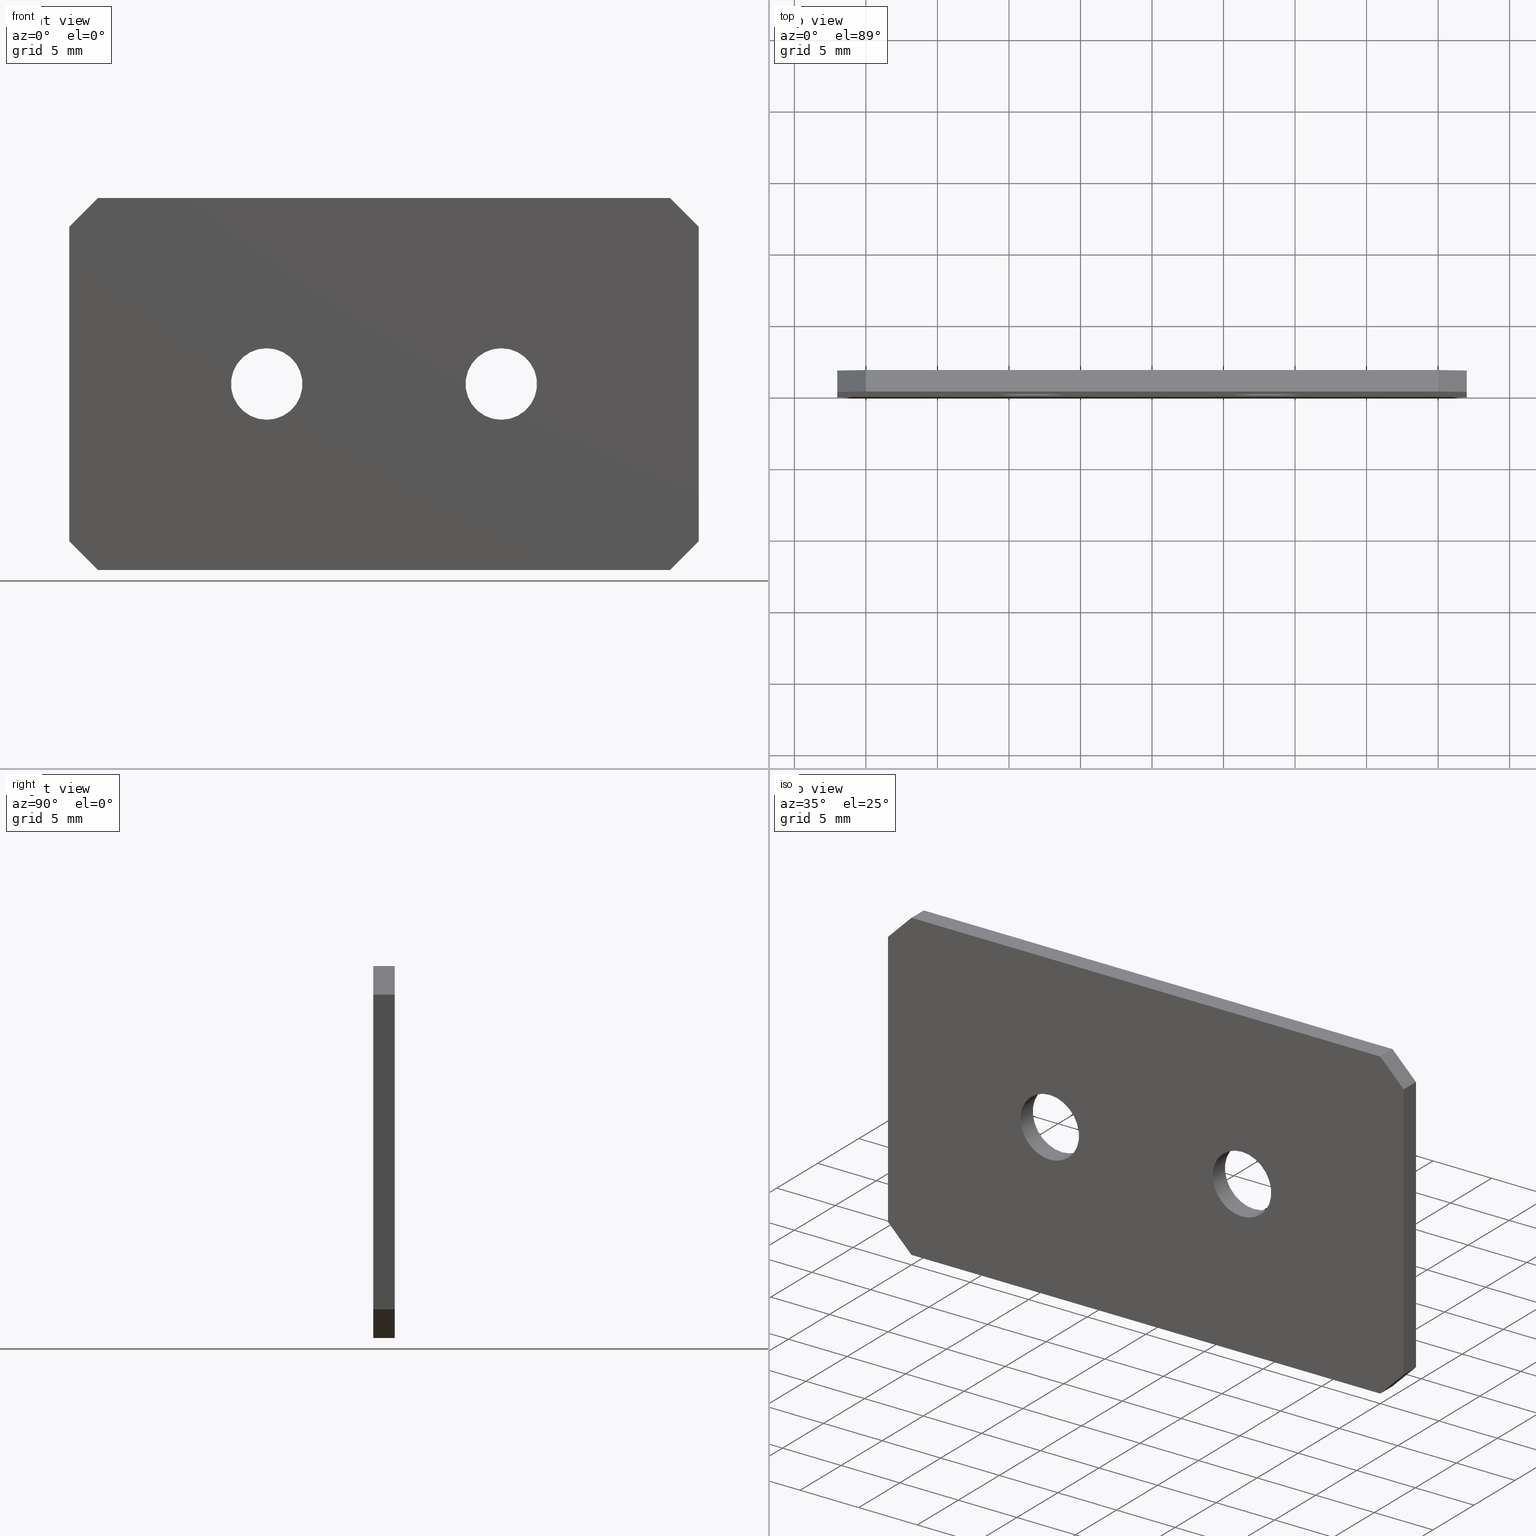
[diagram: canonical four-view strip — front | top / right | iso, engineering-drawing reading convention]
A machine part, canonical four-view strip (front | top / right | iso — engineering-drawing reading convention). The complete STEP part file that produces these views, byte-faithful:
ISO-10303-21;
HEADER;
FILE_DESCRIPTION (( 'STEP AP214' ),
    '1' );
FILE_NAME ('TM 0505.STEP',
    '2010-02-17T12:32:51',
    ( 'KennethW' ),
    ( 'FIBOX' ),
    'SwSTEP 2.0',
    'SolidWorks 2009',
    '' );
FILE_SCHEMA (( 'AUTOMOTIVE_DESIGN' ));
ENDSEC;

DATA;
#1 = ADVANCED_FACE ( 'NONE', ( #231 ), #230, .F. ) ;
#2 = ORIENTED_EDGE ( 'NONE', *, *, #6, .T. ) ;
#3 = EDGE_CURVE ( 'NONE', #5, #32, #215, .T. ) ;
#4 = VERTEX_POINT ( 'NONE', #211 ) ;
#5 = VERTEX_POINT ( 'NONE', #210 ) ;
#6 = EDGE_CURVE ( 'NONE', #4, #13, #209, .T. ) ;
#7 = EDGE_LOOP ( 'NONE', ( #2, #52, #40, #43 ) ) ;
#8 = ORIENTED_EDGE ( 'NONE', *, *, #3, .F. ) ;
#9 = ORIENTED_EDGE ( 'NONE', *, *, #31, .T. ) ;
#10 = EDGE_LOOP ( 'NONE', ( #26, #27 ) ) ;
#11 = VERTEX_POINT ( 'NONE', #204 ) ;
#12 = ADVANCED_FACE ( 'NONE', ( #203 ), #202, .F. ) ;
#13 = VERTEX_POINT ( 'NONE', #201 ) ;
#14 = EDGE_CURVE ( 'NONE', #223, #219, #196, .T. ) ;
#15 = ORIENTED_EDGE ( 'NONE', *, *, #17, .T. ) ;
#16 = VERTEX_POINT ( 'NONE', #192 ) ;
#17 = EDGE_CURVE ( 'NONE', #56, #18, #191, .T. ) ;
#18 = VERTEX_POINT ( 'NONE', #187 ) ;
#19 = ORIENTED_EDGE ( 'NONE', *, *, #22, .T. ) ;
#20 = ORIENTED_EDGE ( 'NONE', *, *, #37, .T. ) ;
#21 =( GEOMETRIC_REPRESENTATION_CONTEXT ( 3 ) GLOBAL_UNCERTAINTY_ASSIGNED_CONTEXT ( ( #402 ) ) GLOBAL_UNIT_ASSIGNED_CONTEXT ( ( #405, #404, #403 ) ) REPRESENTATION_CONTEXT ( 'NONE', 'WORKASPACE' ) );
#22 = EDGE_CURVE ( 'NONE', #16, #38, #186, .T. ) ;
#23 = ORIENTED_EDGE ( 'NONE', *, *, #136, .F. ) ;
#24 = EDGE_CURVE ( 'NONE', #221, #223, #153, .T. ) ;
#25 = ADVANCED_FACE ( 'NONE', ( #154, #148, #147 ), #146, .F. ) ;
#26 = ORIENTED_EDGE ( 'NONE', *, *, #41, .T. ) ;
#27 = ORIENTED_EDGE ( 'NONE', *, *, #28, .T. ) ;
#28 = EDGE_CURVE ( 'NONE', #11, #42, #140, .T. ) ;
#29 = EDGE_LOOP ( 'NONE', ( #8, #33, #71, #74, #77, #80, #83, #87 ) ) ;
#30 = EDGE_LOOP ( 'NONE', ( #23, #36 ) ) ;
#31 = EDGE_CURVE ( 'NONE', #38, #226, #141, .T. ) ;
#32 = VERTEX_POINT ( 'NONE', #172 ) ;
#33 = ORIENTED_EDGE ( 'NONE', *, *, #34, .F. ) ;
#34 = EDGE_CURVE ( 'NONE', #35, #5, #171, .T. ) ;
#35 = VERTEX_POINT ( 'NONE', #167 ) ;
#36 = ORIENTED_EDGE ( 'NONE', *, *, #24, .F. ) ;
#37 = EDGE_CURVE ( 'NONE', #18, #16, #166, .T. ) ;
#38 = VERTEX_POINT ( 'NONE', #162 ) ;
#39 = EDGE_CURVE ( 'NONE', #13, #11, #160, .T. ) ;
#40 = ORIENTED_EDGE ( 'NONE', *, *, #41, .F. ) ;
#41 = EDGE_CURVE ( 'NONE', #42, #11, #249, .T. ) ;
#42 = VERTEX_POINT ( 'NONE', #271 ) ;
#43 = ORIENTED_EDGE ( 'NONE', *, *, #44, .F. ) ;
#44 = EDGE_CURVE ( 'NONE', #4, #42, #277, .T. ) ;
#45 = VERTEX_POINT ( 'NONE', #268 ) ;
#46 = ORIENTED_EDGE ( 'NONE', *, *, #220, .F. ) ;
#47 = ORIENTED_EDGE ( 'NONE', *, *, #24, .T. ) ;
#48 = ORIENTED_EDGE ( 'NONE', *, *, #14, .T. ) ;
#49 = ORIENTED_EDGE ( 'NONE', *, *, #91, .F. ) ;
#50 = CLOSED_SHELL ( 'NONE', ( #12, #1, #156, #25, #92, #100, #107, #114, #121, #232, #66, #130, #237, #243 ) ) ;
#51 = EDGE_LOOP ( 'NONE', ( #222, #137, #180, #155 ) ) ;
#52 = ORIENTED_EDGE ( 'NONE', *, *, #39, .T. ) ;
#53 = VERTEX_POINT ( 'NONE', #252 ) ;
#54 = ORIENTED_EDGE ( 'NONE', *, *, #55, .T. ) ;
#55 = EDGE_CURVE ( 'NONE', #53, #56, #276, .T. ) ;
#56 = VERTEX_POINT ( 'NONE', #269 ) ;
#57 = EDGE_LOOP ( 'NONE', ( #58, #59 ) ) ;
#58 = ORIENTED_EDGE ( 'NONE', *, *, #6, .F. ) ;
#59 = ORIENTED_EDGE ( 'NONE', *, *, #181, .F. ) ;
#60 = ORIENTED_EDGE ( 'NONE', *, *, #228, .T. ) ;
#61 = EDGE_CURVE ( 'NONE', #219, #45, #286, .T. ) ;
#62 = VERTEX_POINT ( 'NONE', #281 ) ;
#63 = ORIENTED_EDGE ( 'NONE', *, *, #227, .T. ) ;
#64 = ORIENTED_EDGE ( 'NONE', *, *, #37, .F. ) ;
#65 = ORIENTED_EDGE ( 'NONE', *, *, #125, .T. ) ;
#66 = ADVANCED_FACE ( 'NONE', ( #280 ), #278, .F. ) ;
#67 = EDGE_LOOP ( 'NONE', ( #68, #69, #128, #129 ) ) ;
#68 = ORIENTED_EDGE ( 'NONE', *, *, #72, .T. ) ;
#69 = ORIENTED_EDGE ( 'NONE', *, *, #70, .F. ) ;
#70 = EDGE_CURVE ( 'NONE', #38, #35, #263, .T. ) ;
#71 = ORIENTED_EDGE ( 'NONE', *, *, #72, .F. ) ;
#72 = EDGE_CURVE ( 'NONE', #73, #35, #259, .T. ) ;
#73 = VERTEX_POINT ( 'NONE', #255 ) ;
#74 = ORIENTED_EDGE ( 'NONE', *, *, #75, .F. ) ;
#75 = EDGE_CURVE ( 'NONE', #76, #73, #253, .T. ) ;
#76 = VERTEX_POINT ( 'NONE', #299 ) ;
#77 = ORIENTED_EDGE ( 'NONE', *, *, #78, .F. ) ;
#78 = EDGE_CURVE ( 'NONE', #79, #76, #302, .T. ) ;
#79 = VERTEX_POINT ( 'NONE', #287 ) ;
#80 = ORIENTED_EDGE ( 'NONE', *, *, #81, .F. ) ;
#81 = EDGE_CURVE ( 'NONE', #82, #79, #300, .T. ) ;
#82 = VERTEX_POINT ( 'NONE', #296 ) ;
#83 = ORIENTED_EDGE ( 'NONE', *, *, #84, .F. ) ;
#84 = EDGE_CURVE ( 'NONE', #85, #82, #295, .T. ) ;
#85 = VERTEX_POINT ( 'NONE', #288 ) ;
#86 = EDGE_LOOP ( 'NONE', ( #89, #90 ) ) ;
#87 = ORIENTED_EDGE ( 'NONE', *, *, #88, .F. ) ;
#88 = EDGE_CURVE ( 'NONE', #32, #85, #254, .T. ) ;
#89 = ORIENTED_EDGE ( 'NONE', *, *, #61, .T. ) ;
#90 = ORIENTED_EDGE ( 'NONE', *, *, #91, .T. ) ;
#91 = EDGE_CURVE ( 'NONE', #45, #219, #309, .T. ) ;
#92 = ADVANCED_FACE ( 'NONE', ( #324 ), #315, .F. ) ;
#93 = EDGE_LOOP ( 'NONE', ( #94, #95, #97, #98 ) ) ;
#94 = ORIENTED_EDGE ( 'NONE', *, *, #3, .T. ) ;
#95 = ORIENTED_EDGE ( 'NONE', *, *, #96, .F. ) ;
#96 = EDGE_CURVE ( 'NONE', #62, #32, #323, .T. ) ;
#97 = ORIENTED_EDGE ( 'NONE', *, *, #225, .F. ) ;
#98 = ORIENTED_EDGE ( 'NONE', *, *, #99, .T. ) ;
#99 = EDGE_CURVE ( 'NONE', #226, #5, #319, .T. ) ;
#100 = ADVANCED_FACE ( 'NONE', ( #344 ), #326, .F. ) ;
#101 = EDGE_LOOP ( 'NONE', ( #102, #103, #105, #106 ) ) ;
#102 = ORIENTED_EDGE ( 'NONE', *, *, #88, .T. ) ;
#103 = ORIENTED_EDGE ( 'NONE', *, *, #104, .F. ) ;
#104 = EDGE_CURVE ( 'NONE', #179, #85, #334, .T. ) ;
#105 = ORIENTED_EDGE ( 'NONE', *, *, #227, .F. ) ;
#106 = ORIENTED_EDGE ( 'NONE', *, *, #96, .T. ) ;
#107 = ADVANCED_FACE ( 'NONE', ( #330 ), #329, .F. ) ;
#108 = EDGE_LOOP ( 'NONE', ( #109, #110, #112, #113 ) ) ;
#109 = ORIENTED_EDGE ( 'NONE', *, *, #84, .T. ) ;
#110 = ORIENTED_EDGE ( 'NONE', *, *, #111, .F. ) ;
#111 = EDGE_CURVE ( 'NONE', #53, #82, #343, .T. ) ;
#112 = ORIENTED_EDGE ( 'NONE', *, *, #228, .F. ) ;
#113 = ORIENTED_EDGE ( 'NONE', *, *, #104, .T. ) ;
#114 = ADVANCED_FACE ( 'NONE', ( #339 ), #371, .F. ) ;
#115 = EDGE_LOOP ( 'NONE', ( #116, #117, #119, #120 ) ) ;
#116 = ORIENTED_EDGE ( 'NONE', *, *, #81, .T. ) ;
#117 = ORIENTED_EDGE ( 'NONE', *, *, #118, .F. ) ;
#118 = EDGE_CURVE ( 'NONE', #56, #79, #457, .T. ) ;
#119 = ORIENTED_EDGE ( 'NONE', *, *, #55, .F. ) ;
#120 = ORIENTED_EDGE ( 'NONE', *, *, #111, .T. ) ;
#121 = ADVANCED_FACE ( 'NONE', ( #466 ), #432, .F. ) ;
#122 = EDGE_LOOP ( 'NONE', ( #123, #124, #126, #127 ) ) ;
#123 = ORIENTED_EDGE ( 'NONE', *, *, #78, .T. ) ;
#124 = ORIENTED_EDGE ( 'NONE', *, *, #125, .F. ) ;
#125 = EDGE_CURVE ( 'NONE', #18, #76, #464, .T. ) ;
#126 = ORIENTED_EDGE ( 'NONE', *, *, #17, .F. ) ;
#127 = ORIENTED_EDGE ( 'NONE', *, *, #118, .T. ) ;
#128 = ORIENTED_EDGE ( 'NONE', *, *, #22, .F. ) ;
#129 = ORIENTED_EDGE ( 'NONE', *, *, #236, .T. ) ;
#130 = ADVANCED_FACE ( 'NONE', ( #460 ), #435, .F. ) ;
#131 = EDGE_LOOP ( 'NONE', ( #132, #133, #134, #135 ) ) ;
#132 = ORIENTED_EDGE ( 'NONE', *, *, #34, .T. ) ;
#133 = ORIENTED_EDGE ( 'NONE', *, *, #99, .F. ) ;
#134 = ORIENTED_EDGE ( 'NONE', *, *, #31, .F. ) ;
#135 = ORIENTED_EDGE ( 'NONE', *, *, #70, .T. ) ;
#136 = EDGE_CURVE ( 'NONE', #223, #221, #436, .T. ) ;
#137 = ORIENTED_EDGE ( 'NONE', *, *, #220, .T. ) ;
#138 = MANIFOLD_SOLID_BREP ( 'NONE', #50 ) ;
#139 = AXIS2_PLACEMENT_3D ( 'NONE', #178, #177, #176 ) ;
#140 = CIRCLE ( 'NONE', #139, 2.500000000000000400 ) ;
#141 = LINE ( 'NONE', #175, #174 ) ;
#142 = DIRECTION ( 'NONE',  ( 0.0000000000000000000, -0.0000000000000000000, 1.000000000000000000 ) ) ;
#143 = DIRECTION ( 'NONE',  ( 0.0000000000000000000, 1.000000000000000000, 0.0000000000000000000 ) ) ;
#144 = CARTESIAN_POINT ( 'NONE',  ( 3.469446951953614200E-015, 0.0000000000000000000, -32.99999999999994300 ) ) ;
#145 = AXIS2_PLACEMENT_3D ( 'NONE', #144, #143, #142 ) ;
#146 = PLANE ( 'NONE',  #145 ) ;
#147 = FACE_BOUND ( 'NONE', #86, .T. ) ;
#148 = FACE_OUTER_BOUND ( 'NONE', #29, .T. ) ;
#149 = DIRECTION ( 'NONE',  ( 0.0000000000000000000, 0.0000000000000000000, -1.000000000000000000 ) ) ;
#150 = DIRECTION ( 'NONE',  ( -0.0000000000000000000, 1.000000000000000000, -0.0000000000000000000 ) ) ;
#151 = CARTESIAN_POINT ( 'NONE',  ( 8.200000000000001100, 1.500000000000000000, -2.439454888092385000E-015 ) ) ;
#152 = AXIS2_PLACEMENT_3D ( 'NONE', #151, #150, #149 ) ;
#153 = CIRCLE ( 'NONE', #152, 2.499999999999999100 ) ;
#154 = FACE_BOUND ( 'NONE', #10, .T. ) ;
#155 = ORIENTED_EDGE ( 'NONE', *, *, #14, .F. ) ;
#156 = ADVANCED_FACE ( 'NONE', ( #450, #449, #448 ), #445, .T. ) ;
#157 = DIRECTION ( 'NONE',  ( -0.0000000000000000000, -1.000000000000000000, -0.0000000000000000000 ) ) ;
#158 = VECTOR ( 'NONE', #157, 1000.000000000000000 ) ;
#159 = CARTESIAN_POINT ( 'NONE',  ( -8.199999999999997500, 1.500000000000000000, 2.500000000000001300 ) ) ;
#160 = LINE ( 'NONE', #159, #158 ) ;
#161 = CARTESIAN_POINT ( 'NONE',  ( -8.199999999999997500, 0.0000000000000000000, 1.029992063861229200E-015 ) ) ;
#162 = CARTESIAN_POINT ( 'NONE',  ( 19.99999999999999600, 1.500000000000000000, -13.00000000000000700 ) ) ;
#163 = DIRECTION ( 'NONE',  ( -3.154042683594193100E-016, 0.0000000000000000000, -1.000000000000000000 ) ) ;
#164 = VECTOR ( 'NONE', #163, 1000.000000000000000 ) ;
#165 = CARTESIAN_POINT ( 'NONE',  ( 22.00000000000000700, 1.500000000000000000, 11.00000000000000500 ) ) ;
#166 = LINE ( 'NONE', #165, #164 ) ;
#167 = CARTESIAN_POINT ( 'NONE',  ( 19.99999999999999600, 0.0000000000000000000, -13.00000000000000700 ) ) ;
#168 = DIRECTION ( 'NONE',  ( -1.000000000000000000, -0.0000000000000000000, 1.301042606982605600E-016 ) ) ;
#169 = VECTOR ( 'NONE', #168, 1000.000000000000000 ) ;
#170 = CARTESIAN_POINT ( 'NONE',  ( -19.99999999999999600, 0.0000000000000000000, -13.00000000000000200 ) ) ;
#171 = LINE ( 'NONE', #170, #169 ) ;
#172 = CARTESIAN_POINT ( 'NONE',  ( -22.00000000000000000, 0.0000000000000000000, -11.00000000000000500 ) ) ;
#173 = DIRECTION ( 'NONE',  ( -1.000000000000000000, -0.0000000000000000000, 1.301042606982605600E-016 ) ) ;
#174 = VECTOR ( 'NONE', #173, 1000.000000000000000 ) ;
#175 = CARTESIAN_POINT ( 'NONE',  ( -19.99999999999999600, 1.500000000000000000, -13.00000000000000200 ) ) ;
#176 = DIRECTION ( 'NONE',  ( 0.0000000000000000000, 0.0000000000000000000, 1.000000000000000000 ) ) ;
#177 = DIRECTION ( 'NONE',  ( 0.0000000000000000000, 1.000000000000000000, 0.0000000000000000000 ) ) ;
#178 = CARTESIAN_POINT ( 'NONE',  ( -8.199999999999997500, 0.0000000000000000000, 1.029992063861229200E-015 ) ) ;
#179 = VERTEX_POINT ( 'NONE', #446 ) ;
#180 = ORIENTED_EDGE ( 'NONE', *, *, #61, .F. ) ;
#181 = EDGE_CURVE ( 'NONE', #13, #4, #365, .T. ) ;
#182 = EDGE_LOOP ( 'NONE', ( #224, #63, #60, #54, #15, #20, #19, #9 ) ) ;
#183 = DIRECTION ( 'NONE',  ( -0.7071067811865484600, 0.0000000000000000000, -0.7071067811865465700 ) ) ;
#184 = VECTOR ( 'NONE', #183, 1000.000000000000000 ) ;
#185 = CARTESIAN_POINT ( 'NONE',  ( 22.00000000000000000, 1.500000000000000000, -11.00000000000001100 ) ) ;
#186 = LINE ( 'NONE', #185, #184 ) ;
#187 = CARTESIAN_POINT ( 'NONE',  ( 22.00000000000000700, 1.500000000000000000, 11.00000000000000500 ) ) ;
#188 = DIRECTION ( 'NONE',  ( 0.7071067811865490200, -0.0000000000000000000, -0.7071067811865460200 ) ) ;
#189 = VECTOR ( 'NONE', #188, 1000.000000000000100 ) ;
#190 = CARTESIAN_POINT ( 'NONE',  ( 22.00000000000000700, 1.500000000000000000, 11.00000000000000500 ) ) ;
#191 = LINE ( 'NONE', #190, #189 ) ;
#192 = CARTESIAN_POINT ( 'NONE',  ( 22.00000000000000000, 1.500000000000000000, -11.00000000000001100 ) ) ;
#193 = DIRECTION ( 'NONE',  ( -0.0000000000000000000, -1.000000000000000000, -0.0000000000000000000 ) ) ;
#194 = VECTOR ( 'NONE', #193, 1000.000000000000000 ) ;
#195 = CARTESIAN_POINT ( 'NONE',  ( 8.200000000000001100, 1.500000000000000000, -2.500000000000001800 ) ) ;
#196 = LINE ( 'NONE', #195, #194 ) ;
#197 = DIRECTION ( 'NONE',  ( 0.0000000000000000000, 0.0000000000000000000, -1.000000000000000000 ) ) ;
#198 = DIRECTION ( 'NONE',  ( -0.0000000000000000000, -1.000000000000000000, -0.0000000000000000000 ) ) ;
#199 = CARTESIAN_POINT ( 'NONE',  ( 8.200000000000001100, 1.500000000000000000, -2.439454888092385000E-015 ) ) ;
#200 = AXIS2_PLACEMENT_3D ( 'NONE', #199, #198, #197 ) ;
#201 = CARTESIAN_POINT ( 'NONE',  ( -8.199999999999997500, 1.500000000000000000, 2.500000000000001300 ) ) ;
#202 = CYLINDRICAL_SURFACE ( 'NONE', #200, 2.499999999999999100 ) ;
#203 = FACE_OUTER_BOUND ( 'NONE', #51, .T. ) ;
#204 = CARTESIAN_POINT ( 'NONE',  ( -8.199999999999997500, 0.0000000000000000000, 2.500000000000001300 ) ) ;
#205 = DIRECTION ( 'NONE',  ( 0.0000000000000000000, 0.0000000000000000000, 1.000000000000000000 ) ) ;
#206 = DIRECTION ( 'NONE',  ( 0.0000000000000000000, 1.000000000000000000, 0.0000000000000000000 ) ) ;
#207 = CARTESIAN_POINT ( 'NONE',  ( -8.199999999999997500, 1.500000000000000000, 1.029992063861229200E-015 ) ) ;
#208 = AXIS2_PLACEMENT_3D ( 'NONE', #207, #206, #205 ) ;
#209 = CIRCLE ( 'NONE', #208, 2.500000000000000400 ) ;
#210 = CARTESIAN_POINT ( 'NONE',  ( -19.99999999999999600, 0.0000000000000000000, -13.00000000000000200 ) ) ;
#211 = CARTESIAN_POINT ( 'NONE',  ( -8.199999999999997500, 1.500000000000000000, -2.499999999999999600 ) ) ;
#212 = DIRECTION ( 'NONE',  ( -0.7071067811865484600, -0.0000000000000000000, 0.7071067811865465700 ) ) ;
#213 = VECTOR ( 'NONE', #212, 1000.000000000000000 ) ;
#214 = CARTESIAN_POINT ( 'NONE',  ( -22.00000000000000000, 0.0000000000000000000, -11.00000000000000500 ) ) ;
#215 = LINE ( 'NONE', #214, #213 ) ;
#216 = DIRECTION ( 'NONE',  ( 0.0000000000000000000, 0.0000000000000000000, -1.000000000000000000 ) ) ;
#217 = DIRECTION ( 'NONE',  ( -0.0000000000000000000, -1.000000000000000000, -0.0000000000000000000 ) ) ;
#218 = CARTESIAN_POINT ( 'NONE',  ( -8.199999999999997500, 1.500000000000000000, 1.029992063861229200E-015 ) ) ;
#219 = VERTEX_POINT ( 'NONE', #357 ) ;
#220 = EDGE_CURVE ( 'NONE', #221, #45, #356, .T. ) ;
#221 = VERTEX_POINT ( 'NONE', #352 ) ;
#222 = ORIENTED_EDGE ( 'NONE', *, *, #136, .T. ) ;
#223 = VERTEX_POINT ( 'NONE', #351 ) ;
#224 = ORIENTED_EDGE ( 'NONE', *, *, #225, .T. ) ;
#225 = EDGE_CURVE ( 'NONE', #226, #62, #350, .T. ) ;
#226 = VERTEX_POINT ( 'NONE', #346 ) ;
#227 = EDGE_CURVE ( 'NONE', #62, #179, #401, .T. ) ;
#228 = EDGE_CURVE ( 'NONE', #179, #53, #397, .T. ) ;
#229 = AXIS2_PLACEMENT_3D ( 'NONE', #218, #217, #216 ) ;
#230 = CYLINDRICAL_SURFACE ( 'NONE', #229, 2.500000000000000400 ) ;
#231 = FACE_OUTER_BOUND ( 'NONE', #7, .T. ) ;
#232 = ADVANCED_FACE ( 'NONE', ( #393 ), #391, .F. ) ;
#233 = EDGE_LOOP ( 'NONE', ( #234, #235, #64, #65 ) ) ;
#234 = ORIENTED_EDGE ( 'NONE', *, *, #75, .T. ) ;
#235 = ORIENTED_EDGE ( 'NONE', *, *, #236, .F. ) ;
#236 = EDGE_CURVE ( 'NONE', #16, #73, #392, .T. ) ;
#237 = ADVANCED_FACE ( 'NONE', ( #383 ), #381, .F. ) ;
#238 = EDGE_LOOP ( 'NONE', ( #239, #240, #241, #242 ) ) ;
#239 = ORIENTED_EDGE ( 'NONE', *, *, #39, .F. ) ;
#240 = ORIENTED_EDGE ( 'NONE', *, *, #181, .T. ) ;
#241 = ORIENTED_EDGE ( 'NONE', *, *, #44, .T. ) ;
#242 = ORIENTED_EDGE ( 'NONE', *, *, #28, .F. ) ;
#243 = ADVANCED_FACE ( 'NONE', ( #382 ), #376, .F. ) ;
#244 = EDGE_LOOP ( 'NONE', ( #46, #47, #48, #49 ) ) ;
#245 = CARTESIAN_POINT ( 'NONE',  ( 22.00000000000000700, 0.0000000000000000000, 11.00000000000000500 ) ) ;
#246 = DIRECTION ( 'NONE',  ( 0.0000000000000000000, 1.000000000000000000, 0.0000000000000000000 ) ) ;
#247 = DIRECTION ( 'NONE',  ( 0.0000000000000000000, 0.0000000000000000000, 1.000000000000000000 ) ) ;
#248 = AXIS2_PLACEMENT_3D ( 'NONE', #161, #246, #247 ) ;
#249 = CIRCLE ( 'NONE', #248, 2.500000000000000400 ) ;
#250 = VECTOR ( 'NONE', #251, 1000.000000000000000 ) ;
#251 = DIRECTION ( 'NONE',  ( -3.154042683594193100E-016, 0.0000000000000000000, -1.000000000000000000 ) ) ;
#252 = CARTESIAN_POINT ( 'NONE',  ( -19.99999999999999600, 1.500000000000000000, 13.00000000000000500 ) ) ;
#253 = LINE ( 'NONE', #245, #250 ) ;
#254 = LINE ( 'NONE', #305, #304 ) ;
#255 = CARTESIAN_POINT ( 'NONE',  ( 22.00000000000000000, 0.0000000000000000000, -11.00000000000001100 ) ) ;
#256 = DIRECTION ( 'NONE',  ( -0.7071067811865484600, 0.0000000000000000000, -0.7071067811865465700 ) ) ;
#257 = VECTOR ( 'NONE', #256, 1000.000000000000000 ) ;
#258 = CARTESIAN_POINT ( 'NONE',  ( 22.00000000000000000, 0.0000000000000000000, -11.00000000000001100 ) ) ;
#259 = LINE ( 'NONE', #258, #257 ) ;
#260 = DIRECTION ( 'NONE',  ( -0.0000000000000000000, -1.000000000000000000, -0.0000000000000000000 ) ) ;
#261 = VECTOR ( 'NONE', #260, 1000.000000000000000 ) ;
#262 = CARTESIAN_POINT ( 'NONE',  ( 19.99999999999999600, 1.500000000000000000, -13.00000000000000700 ) ) ;
#263 = LINE ( 'NONE', #262, #261 ) ;
#264 = DIRECTION ( 'NONE',  ( 0.7071067811865484600, 0.0000000000000000000, 0.7071067811865465700 ) ) ;
#265 = DIRECTION ( 'NONE',  ( -0.7071067811865465700, 0.0000000000000000000, 0.7071067811865484600 ) ) ;
#266 = CARTESIAN_POINT ( 'NONE',  ( 22.00000000000000000, 1.500000000000000000, -11.00000000000001100 ) ) ;
#267 = CARTESIAN_POINT ( 'NONE',  ( -8.199999999999997500, 1.500000000000000000, -2.499999999999999600 ) ) ;
#268 = CARTESIAN_POINT ( 'NONE',  ( 8.200000000000001100, 0.0000000000000000000, 2.499999999999996400 ) ) ;
#269 = CARTESIAN_POINT ( 'NONE',  ( 20.00000000000000400, 1.500000000000000000, 12.99999999999999800 ) ) ;
#270 = DIRECTION ( 'NONE',  ( 1.000000000000000000, 0.0000000000000000000, -1.734723475976807100E-016 ) ) ;
#271 = CARTESIAN_POINT ( 'NONE',  ( -8.199999999999997500, 0.0000000000000000000, -2.499999999999999600 ) ) ;
#272 = VECTOR ( 'NONE', #273, 1000.000000000000000 ) ;
#273 = DIRECTION ( 'NONE',  ( -0.0000000000000000000, -1.000000000000000000, -0.0000000000000000000 ) ) ;
#274 = VECTOR ( 'NONE', #270, 1000.000000000000000 ) ;
#275 = CARTESIAN_POINT ( 'NONE',  ( -19.99999999999999600, 1.500000000000000000, 13.00000000000000500 ) ) ;
#276 = LINE ( 'NONE', #275, #274 ) ;
#277 = LINE ( 'NONE', #267, #272 ) ;
#278 = PLANE ( 'NONE',  #279 ) ;
#279 = AXIS2_PLACEMENT_3D ( 'NONE', #266, #265, #264 ) ;
#280 = FACE_OUTER_BOUND ( 'NONE', #67, .T. ) ;
#281 = CARTESIAN_POINT ( 'NONE',  ( -22.00000000000000000, 1.500000000000000000, -11.00000000000000500 ) ) ;
#282 = DIRECTION ( 'NONE',  ( 0.0000000000000000000, 0.0000000000000000000, -1.000000000000000000 ) ) ;
#283 = DIRECTION ( 'NONE',  ( -0.0000000000000000000, 1.000000000000000000, -0.0000000000000000000 ) ) ;
#284 = CARTESIAN_POINT ( 'NONE',  ( 8.200000000000001100, 0.0000000000000000000, -2.439454888092385000E-015 ) ) ;
#285 = AXIS2_PLACEMENT_3D ( 'NONE', #284, #283, #282 ) ;
#286 = CIRCLE ( 'NONE', #285, 2.499999999999999100 ) ;
#287 = CARTESIAN_POINT ( 'NONE',  ( 20.00000000000000400, 0.0000000000000000000, 12.99999999999999800 ) ) ;
#288 = CARTESIAN_POINT ( 'NONE',  ( -22.00000000000000000, 0.0000000000000000000, 11.00000000000001100 ) ) ;
#289 = DIRECTION ( 'NONE',  ( 0.7071067811865490200, 0.0000000000000000000, 0.7071067811865460200 ) ) ;
#290 = VECTOR ( 'NONE', #289, 1000.000000000000100 ) ;
#291 = CARTESIAN_POINT ( 'NONE',  ( -22.00000000000000000, 0.0000000000000000000, 11.00000000000001100 ) ) ;
#292 = CARTESIAN_POINT ( 'NONE',  ( -19.99999999999999600, 0.0000000000000000000, 13.00000000000000500 ) ) ;
#293 = DIRECTION ( 'NONE',  ( 0.7071067811865490200, -0.0000000000000000000, -0.7071067811865460200 ) ) ;
#294 = VECTOR ( 'NONE', #293, 1000.000000000000100 ) ;
#295 = LINE ( 'NONE', #291, #290 ) ;
#296 = CARTESIAN_POINT ( 'NONE',  ( -19.99999999999999600, 0.0000000000000000000, 13.00000000000000500 ) ) ;
#297 = DIRECTION ( 'NONE',  ( 1.000000000000000000, 0.0000000000000000000, -1.734723475976807100E-016 ) ) ;
#298 = VECTOR ( 'NONE', #297, 1000.000000000000000 ) ;
#299 = CARTESIAN_POINT ( 'NONE',  ( 22.00000000000000700, 0.0000000000000000000, 11.00000000000000500 ) ) ;
#300 = LINE ( 'NONE', #292, #298 ) ;
#301 = CARTESIAN_POINT ( 'NONE',  ( 22.00000000000000700, 0.0000000000000000000, 11.00000000000000500 ) ) ;
#302 = LINE ( 'NONE', #301, #294 ) ;
#303 = DIRECTION ( 'NONE',  ( -0.0000000000000000000, -0.0000000000000000000, 1.000000000000000000 ) ) ;
#304 = VECTOR ( 'NONE', #303, 1000.000000000000000 ) ;
#305 = CARTESIAN_POINT ( 'NONE',  ( -22.00000000000000000, 0.0000000000000000000, 11.00000000000001100 ) ) ;
#306 = DIRECTION ( 'NONE',  ( 0.0000000000000000000, 0.0000000000000000000, -1.000000000000000000 ) ) ;
#307 = DIRECTION ( 'NONE',  ( -0.0000000000000000000, 1.000000000000000000, -0.0000000000000000000 ) ) ;
#308 = AXIS2_PLACEMENT_3D ( 'NONE', #310, #307, #306 ) ;
#309 = CIRCLE ( 'NONE', #308, 2.499999999999999100 ) ;
#310 = CARTESIAN_POINT ( 'NONE',  ( 8.200000000000001100, 0.0000000000000000000, -2.439454888092385000E-015 ) ) ;
#311 = DIRECTION ( 'NONE',  ( 0.7071067811865484600, 0.0000000000000000000, -0.7071067811865465700 ) ) ;
#312 = DIRECTION ( 'NONE',  ( 0.7071067811865465700, -0.0000000000000000000, 0.7071067811865484600 ) ) ;
#313 = CARTESIAN_POINT ( 'NONE',  ( -22.00000000000000000, 1.500000000000000000, -11.00000000000000500 ) ) ;
#314 = AXIS2_PLACEMENT_3D ( 'NONE', #313, #312, #311 ) ;
#315 = PLANE ( 'NONE',  #314 ) ;
#316 = DIRECTION ( 'NONE',  ( -0.0000000000000000000, -1.000000000000000000, -0.0000000000000000000 ) ) ;
#317 = VECTOR ( 'NONE', #316, 1000.000000000000000 ) ;
#318 = CARTESIAN_POINT ( 'NONE',  ( -19.99999999999999600, 1.500000000000000000, -13.00000000000000200 ) ) ;
#319 = LINE ( 'NONE', #318, #317 ) ;
#320 = DIRECTION ( 'NONE',  ( -0.0000000000000000000, -1.000000000000000000, -0.0000000000000000000 ) ) ;
#321 = VECTOR ( 'NONE', #320, 1000.000000000000000 ) ;
#322 = CARTESIAN_POINT ( 'NONE',  ( -22.00000000000000000, 1.500000000000000000, -11.00000000000000500 ) ) ;
#323 = LINE ( 'NONE', #322, #321 ) ;
#324 = FACE_OUTER_BOUND ( 'NONE', #93, .T. ) ;
#325 = DIRECTION ( 'NONE',  ( 1.000000000000000000, -0.0000000000000000000, 0.0000000000000000000 ) ) ;
#326 = PLANE ( 'NONE',  #328 ) ;
#327 = CARTESIAN_POINT ( 'NONE',  ( -22.00000000000000000, 1.500000000000000000, 11.00000000000001100 ) ) ;
#328 = AXIS2_PLACEMENT_3D ( 'NONE', #327, #325, #345 ) ;
#329 = PLANE ( 'NONE',  #338 ) ;
#330 = FACE_OUTER_BOUND ( 'NONE', #108, .T. ) ;
#331 = DIRECTION ( 'NONE',  ( -0.0000000000000000000, -1.000000000000000000, -0.0000000000000000000 ) ) ;
#332 = VECTOR ( 'NONE', #331, 1000.000000000000000 ) ;
#333 = CARTESIAN_POINT ( 'NONE',  ( -22.00000000000000000, 1.500000000000000000, 11.00000000000001100 ) ) ;
#334 = LINE ( 'NONE', #333, #332 ) ;
#335 = DIRECTION ( 'NONE',  ( -0.7071067811865490200, 0.0000000000000000000, -0.7071067811865460200 ) ) ;
#336 = DIRECTION ( 'NONE',  ( 0.7071067811865460200, 0.0000000000000000000, -0.7071067811865490200 ) ) ;
#337 = CARTESIAN_POINT ( 'NONE',  ( -22.00000000000000000, 1.500000000000000000, 11.00000000000001100 ) ) ;
#338 = AXIS2_PLACEMENT_3D ( 'NONE', #337, #336, #335 ) ;
#339 = FACE_OUTER_BOUND ( 'NONE', #115, .T. ) ;
#340 = DIRECTION ( 'NONE',  ( -0.0000000000000000000, -1.000000000000000000, -0.0000000000000000000 ) ) ;
#341 = VECTOR ( 'NONE', #340, 1000.000000000000000 ) ;
#342 = CARTESIAN_POINT ( 'NONE',  ( -19.99999999999999600, 1.500000000000000000, 13.00000000000000500 ) ) ;
#343 = LINE ( 'NONE', #342, #341 ) ;
#344 = FACE_OUTER_BOUND ( 'NONE', #101, .T. ) ;
#345 = DIRECTION ( 'NONE',  ( 0.0000000000000000000, 0.0000000000000000000, -1.000000000000000000 ) ) ;
#346 = CARTESIAN_POINT ( 'NONE',  ( -19.99999999999999600, 1.500000000000000000, -13.00000000000000200 ) ) ;
#347 = DIRECTION ( 'NONE',  ( -0.7071067811865484600, -0.0000000000000000000, 0.7071067811865465700 ) ) ;
#348 = VECTOR ( 'NONE', #347, 1000.000000000000000 ) ;
#349 = CARTESIAN_POINT ( 'NONE',  ( -22.00000000000000000, 1.500000000000000000, -11.00000000000000500 ) ) ;
#350 = LINE ( 'NONE', #349, #348 ) ;
#351 = CARTESIAN_POINT ( 'NONE',  ( 8.200000000000001100, 1.500000000000000000, -2.500000000000001800 ) ) ;
#352 = CARTESIAN_POINT ( 'NONE',  ( 8.200000000000001100, 1.500000000000000000, 2.499999999999996400 ) ) ;
#353 = DIRECTION ( 'NONE',  ( -0.0000000000000000000, -1.000000000000000000, -0.0000000000000000000 ) ) ;
#354 = VECTOR ( 'NONE', #353, 1000.000000000000000 ) ;
#355 = CARTESIAN_POINT ( 'NONE',  ( 8.200000000000001100, 1.500000000000000000, 2.499999999999996400 ) ) ;
#356 = LINE ( 'NONE', #355, #354 ) ;
#357 = CARTESIAN_POINT ( 'NONE',  ( 8.200000000000001100, 0.0000000000000000000, -2.500000000000001800 ) ) ;
#358 = DIRECTION ( 'NONE',  ( 0.0000000000000000000, 0.0000000000000000000, 1.000000000000000000 ) ) ;
#359 = DIRECTION ( 'NONE',  ( -1.734723475976806800E-016, 0.0000000000000000000, -1.000000000000000000 ) ) ;
#360 = UNCERTAINTY_MEASURE_WITH_UNIT (LENGTH_MEASURE( 1.000000000000000100E-005 ), #423, 'distance_accuracy_value', 'NONE');
#361 =( NAMED_UNIT ( * ) SI_UNIT ( $, .STERADIAN. ) SOLID_ANGLE_UNIT ( ) );
#362 = DIRECTION ( 'NONE',  ( 0.0000000000000000000, 1.000000000000000000, 0.0000000000000000000 ) ) ;
#363 = CARTESIAN_POINT ( 'NONE',  ( -8.199999999999997500, 1.500000000000000000, 1.029992063861229200E-015 ) ) ;
#364 = AXIS2_PLACEMENT_3D ( 'NONE', #363, #362, #358 ) ;
#365 = CIRCLE ( 'NONE', #364, 2.500000000000000400 ) ;
#366 = DIRECTION ( 'NONE',  ( 0.0000000000000000000, -0.0000000000000000000, 1.000000000000000000 ) ) ;
#367 = DIRECTION ( 'NONE',  ( 0.0000000000000000000, 1.000000000000000000, 0.0000000000000000000 ) ) ;
#368 = CARTESIAN_POINT ( 'NONE',  ( 3.469446951953614200E-015, 1.500000000000000000, -32.99999999999994300 ) ) ;
#369 = DIRECTION ( 'NONE',  ( -1.000000000000000000, 0.0000000000000000000, 1.734723475976806800E-016 ) ) ;
#370 = CARTESIAN_POINT ( 'NONE',  ( 20.00000000000000400, 1.500000000000000000, 12.99999999999999800 ) ) ;
#371 = PLANE ( 'NONE',  #431 ) ;
#372 = DIRECTION ( 'NONE',  ( 0.0000000000000000000, 0.0000000000000000000, -1.000000000000000000 ) ) ;
#373 = DIRECTION ( 'NONE',  ( -0.0000000000000000000, -1.000000000000000000, -0.0000000000000000000 ) ) ;
#374 = AXIS2_PLACEMENT_3D ( 'NONE', #375, #373, #372 ) ;
#375 = CARTESIAN_POINT ( 'NONE',  ( 8.200000000000001100, 1.500000000000000000, -2.439454888092385000E-015 ) ) ;
#376 = CYLINDRICAL_SURFACE ( 'NONE', #374, 2.499999999999999100 ) ;
#377 = DIRECTION ( 'NONE',  ( 0.0000000000000000000, 0.0000000000000000000, -1.000000000000000000 ) ) ;
#378 = DIRECTION ( 'NONE',  ( -0.0000000000000000000, -1.000000000000000000, -0.0000000000000000000 ) ) ;
#379 = CARTESIAN_POINT ( 'NONE',  ( -8.199999999999997500, 1.500000000000000000, 1.029992063861229200E-015 ) ) ;
#380 = AXIS2_PLACEMENT_3D ( 'NONE', #379, #378, #377 ) ;
#381 = CYLINDRICAL_SURFACE ( 'NONE', #380, 2.500000000000000400 ) ;
#382 = FACE_OUTER_BOUND ( 'NONE', #244, .T. ) ;
#383 = FACE_OUTER_BOUND ( 'NONE', #238, .T. ) ;
#384 = DIRECTION ( 'NONE',  ( -0.0000000000000000000, -1.000000000000000000, -0.0000000000000000000 ) ) ;
#385 = VECTOR ( 'NONE', #384, 1000.000000000000000 ) ;
#386 = CARTESIAN_POINT ( 'NONE',  ( 22.00000000000000000, 1.500000000000000000, -11.00000000000001100 ) ) ;
#387 = DIRECTION ( 'NONE',  ( 3.154042683594193100E-016, 0.0000000000000000000, 1.000000000000000000 ) ) ;
#388 = DIRECTION ( 'NONE',  ( -1.000000000000000000, 0.0000000000000000000, 3.154042683594193100E-016 ) ) ;
#389 = CARTESIAN_POINT ( 'NONE',  ( 22.00000000000000700, 1.500000000000000000, 11.00000000000000500 ) ) ;
#390 = AXIS2_PLACEMENT_3D ( 'NONE', #389, #388, #387 ) ;
#391 = PLANE ( 'NONE',  #390 ) ;
#392 = LINE ( 'NONE', #386, #385 ) ;
#393 = FACE_OUTER_BOUND ( 'NONE', #233, .T. ) ;
#394 = DIRECTION ( 'NONE',  ( 0.7071067811865490200, 0.0000000000000000000, 0.7071067811865460200 ) ) ;
#395 = VECTOR ( 'NONE', #394, 1000.000000000000100 ) ;
#396 = CARTESIAN_POINT ( 'NONE',  ( -22.00000000000000000, 1.500000000000000000, 11.00000000000001100 ) ) ;
#397 = LINE ( 'NONE', #396, #395 ) ;
#398 = DIRECTION ( 'NONE',  ( -0.0000000000000000000, -0.0000000000000000000, 1.000000000000000000 ) ) ;
#399 = VECTOR ( 'NONE', #398, 1000.000000000000000 ) ;
#400 = CARTESIAN_POINT ( 'NONE',  ( -22.00000000000000000, 1.500000000000000000, 11.00000000000001100 ) ) ;
#401 = LINE ( 'NONE', #400, #399 ) ;
#402 = UNCERTAINTY_MEASURE_WITH_UNIT (LENGTH_MEASURE( 1.000000000000000100E-005 ), #405, 'distance_accuracy_value', 'NONE');
#403 =( NAMED_UNIT ( * ) SI_UNIT ( $, .STERADIAN. ) SOLID_ANGLE_UNIT ( ) );
#404 =( NAMED_UNIT ( * ) PLANE_ANGLE_UNIT ( ) SI_UNIT ( $, .RADIAN. ) );
#405 =( LENGTH_UNIT ( ) NAMED_UNIT ( * ) SI_UNIT ( .MILLI., .METRE. ) );
#406 = MECHANICAL_DESIGN_GEOMETRIC_PRESENTATION_REPRESENTATION (  '', ( #408 ), #21 ) ;
#407 = PRESENTATION_LAYER_ASSIGNMENT (  '', '', ( #408 ) ) ;
#408 = STYLED_ITEM ( 'NONE', ( #409 ), #416 ) ;
#409 = PRESENTATION_STYLE_ASSIGNMENT (( #410 ) ) ;
#410 = SURFACE_STYLE_USAGE ( .BOTH. , #411 ) ;
#411 = SURFACE_SIDE_STYLE ('',( #412 ) ) ;
#412 = SURFACE_STYLE_FILL_AREA ( #413 ) ;
#413 = FILL_AREA_STYLE ('',( #414 ) ) ;
#414 = FILL_AREA_STYLE_COLOUR ( '', #415 ) ;
#415 = COLOUR_RGB ( '',0.7529411764705882200, 0.7529411764705882200, 0.7529411764705882200 ) ;
#416 = ADVANCED_BREP_SHAPE_REPRESENTATION ( 'TM 0505', ( #138, #478 ), #417 ) ;
#417 =( GEOMETRIC_REPRESENTATION_CONTEXT ( 3 ) GLOBAL_UNCERTAINTY_ASSIGNED_CONTEXT ( ( #418 ) ) GLOBAL_UNIT_ASSIGNED_CONTEXT ( ( #421, #420, #419 ) ) REPRESENTATION_CONTEXT ( 'NONE', 'WORKASPACE' ) );
#418 = UNCERTAINTY_MEASURE_WITH_UNIT (LENGTH_MEASURE( 1.000000000000000100E-005 ), #421, 'distance_accuracy_value', 'NONE');
#419 =( NAMED_UNIT ( * ) SI_UNIT ( $, .STERADIAN. ) SOLID_ANGLE_UNIT ( ) );
#420 =( NAMED_UNIT ( * ) PLANE_ANGLE_UNIT ( ) SI_UNIT ( $, .RADIAN. ) );
#421 =( LENGTH_UNIT ( ) NAMED_UNIT ( * ) SI_UNIT ( .MILLI., .METRE. ) );
#422 =( NAMED_UNIT ( * ) PLANE_ANGLE_UNIT ( ) SI_UNIT ( $, .RADIAN. ) );
#423 =( LENGTH_UNIT ( ) NAMED_UNIT ( * ) SI_UNIT ( .MILLI., .METRE. ) );
#424 = MECHANICAL_DESIGN_GEOMETRIC_PRESENTATION_REPRESENTATION (  '', ( #426 ), #451 ) ;
#425 = PRESENTATION_LAYER_ASSIGNMENT (  '', '', ( #426 ) ) ;
#426 = STYLED_ITEM ( 'NONE', ( #438 ), #138 ) ;
#427 = DIRECTION ( 'NONE',  ( -0.0000000000000000000, -1.000000000000000000, -0.0000000000000000000 ) ) ;
#428 = DIRECTION ( 'NONE',  ( -0.7071067811865460200, 0.0000000000000000000, -0.7071067811865490200 ) ) ;
#429 = CARTESIAN_POINT ( 'NONE',  ( 22.00000000000000700, 1.500000000000000000, 11.00000000000000500 ) ) ;
#430 = AXIS2_PLACEMENT_3D ( 'NONE', #429, #428, #433 ) ;
#431 = AXIS2_PLACEMENT_3D ( 'NONE', #465, #359, #369 ) ;
#432 = PLANE ( 'NONE',  #430 ) ;
#433 = DIRECTION ( 'NONE',  ( -0.7071067811865490200, 0.0000000000000000000, 0.7071067811865460200 ) ) ;
#434 = CARTESIAN_POINT ( 'NONE',  ( -19.99999999999999600, 1.500000000000000000, -13.00000000000000200 ) ) ;
#435 = PLANE ( 'NONE',  #459 ) ;
#436 = CIRCLE ( 'NONE', #454, 2.499999999999999100 ) ;
#437 = DIRECTION ( 'NONE',  ( 1.301042606982605600E-016, -0.0000000000000000000, 1.000000000000000000 ) ) ;
#438 = PRESENTATION_STYLE_ASSIGNMENT (( #439 ) ) ;
#439 = SURFACE_STYLE_USAGE ( .BOTH. , #440 ) ;
#440 = SURFACE_SIDE_STYLE ('',( #441 ) ) ;
#441 = SURFACE_STYLE_FILL_AREA ( #442 ) ;
#442 = FILL_AREA_STYLE ('',( #455 ) ) ;
#443 = COLOUR_RGB ( '',0.7529411764705882200, 0.7529411764705882200, 0.7529411764705882200 ) ;
#444 = DIRECTION ( 'NONE',  ( 0.0000000000000000000, 0.0000000000000000000, -1.000000000000000000 ) ) ;
#445 = PLANE ( 'NONE',  #447 ) ;
#446 = CARTESIAN_POINT ( 'NONE',  ( -22.00000000000000000, 1.500000000000000000, 11.00000000000001100 ) ) ;
#447 = AXIS2_PLACEMENT_3D ( 'NONE', #368, #367, #366 ) ;
#448 = FACE_BOUND ( 'NONE', #30, .T. ) ;
#449 = FACE_OUTER_BOUND ( 'NONE', #182, .T. ) ;
#450 = FACE_BOUND ( 'NONE', #57, .T. ) ;
#451 =( GEOMETRIC_REPRESENTATION_CONTEXT ( 3 ) GLOBAL_UNCERTAINTY_ASSIGNED_CONTEXT ( ( #360 ) ) GLOBAL_UNIT_ASSIGNED_CONTEXT ( ( #423, #422, #361 ) ) REPRESENTATION_CONTEXT ( 'NONE', 'WORKASPACE' ) );
#452 = DIRECTION ( 'NONE',  ( -0.0000000000000000000, 1.000000000000000000, -0.0000000000000000000 ) ) ;
#453 = CARTESIAN_POINT ( 'NONE',  ( 8.200000000000001100, 1.500000000000000000, -2.439454888092385000E-015 ) ) ;
#454 = AXIS2_PLACEMENT_3D ( 'NONE', #453, #452, #444 ) ;
#455 = FILL_AREA_STYLE_COLOUR ( '', #443 ) ;
#456 = DIRECTION ( 'NONE',  ( 1.000000000000000000, 0.0000000000000000000, -1.301042606982605600E-016 ) ) ;
#457 = LINE ( 'NONE', #370, #458 ) ;
#458 = VECTOR ( 'NONE', #427, 1000.000000000000000 ) ;
#459 = AXIS2_PLACEMENT_3D ( 'NONE', #434, #437, #456 ) ;
#460 = FACE_OUTER_BOUND ( 'NONE', #131, .T. ) ;
#461 = DIRECTION ( 'NONE',  ( -0.0000000000000000000, -1.000000000000000000, -0.0000000000000000000 ) ) ;
#462 = VECTOR ( 'NONE', #461, 1000.000000000000000 ) ;
#463 = CARTESIAN_POINT ( 'NONE',  ( 22.00000000000000700, 1.500000000000000000, 11.00000000000000500 ) ) ;
#464 = LINE ( 'NONE', #463, #462 ) ;
#465 = CARTESIAN_POINT ( 'NONE',  ( -19.99999999999999600, 1.500000000000000000, 13.00000000000000500 ) ) ;
#466 = FACE_OUTER_BOUND ( 'NONE', #122, .T. ) ;
#467 = PRODUCT_DEFINITION_SHAPE ( 'NONE', 'NONE',  #470 ) ;
#468 = PRODUCT_RELATED_PRODUCT_CATEGORY ( 'part', '', ( #474 ) ) ;
#469 = PRODUCT_DEFINITION_FORMATION_WITH_SPECIFIED_SOURCE ( 'ANY', '', #474, .NOT_KNOWN. ) ;
#470 = PRODUCT_DEFINITION ( 'UNKNOWN', '', #469, #471 ) ;
#471 = PRODUCT_DEFINITION_CONTEXT ( 'detailed design', #473, 'design' ) ;
#472 = APPLICATION_PROTOCOL_DEFINITION ( 'draft international standard', 'automotive_design', 1998, #473 ) ;
#473 = APPLICATION_CONTEXT ( 'automotive_design' ) ;
#474 = PRODUCT ( 'TM 0505', 'TM 0505', '', ( #475 ) ) ;
#475 = PRODUCT_CONTEXT ( 'NONE', #482, 'mechanical' ) ;
#476 = APPLICATION_PROTOCOL_DEFINITION ( 'draft international standard', 'automotive_design', 1998, #482 ) ;
#477 = CARTESIAN_POINT ( 'NONE',  ( 0.0000000000000000000, 0.0000000000000000000, 0.0000000000000000000 ) ) ;
#478 = AXIS2_PLACEMENT_3D ( 'NONE', #477, #479, #481 ) ;
#479 = DIRECTION ( 'NONE',  ( 0.0000000000000000000, 0.0000000000000000000, 1.000000000000000000 ) ) ;
#480 = SHAPE_DEFINITION_REPRESENTATION ( #467, #416 ) ;
#481 = DIRECTION ( 'NONE',  ( 1.000000000000000000, 0.0000000000000000000, 0.0000000000000000000 ) ) ;
#482 = APPLICATION_CONTEXT ( 'automotive_design' ) ;
ENDSEC;
END-ISO-10303-21;
